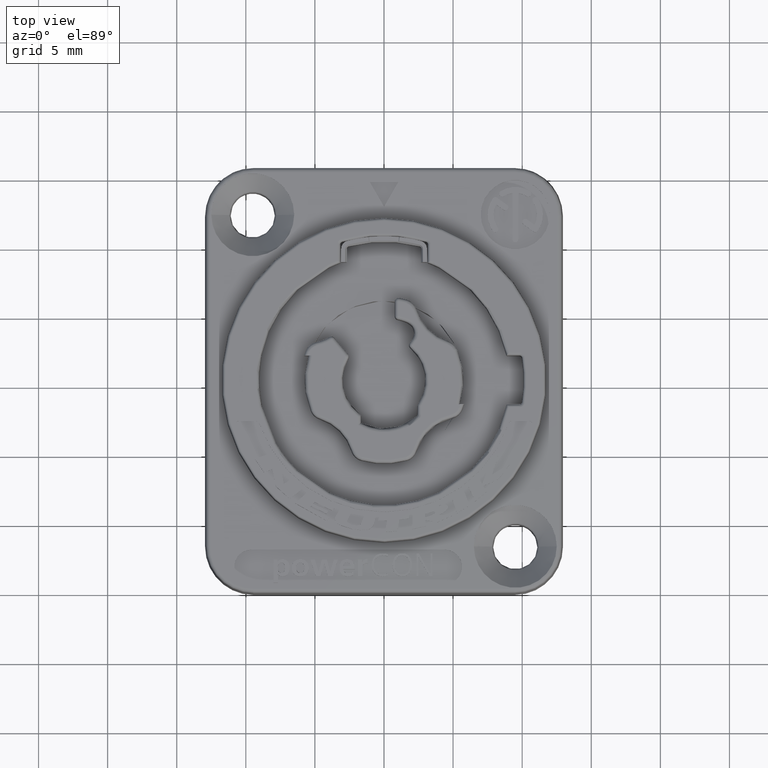
[diagram: clean part render]
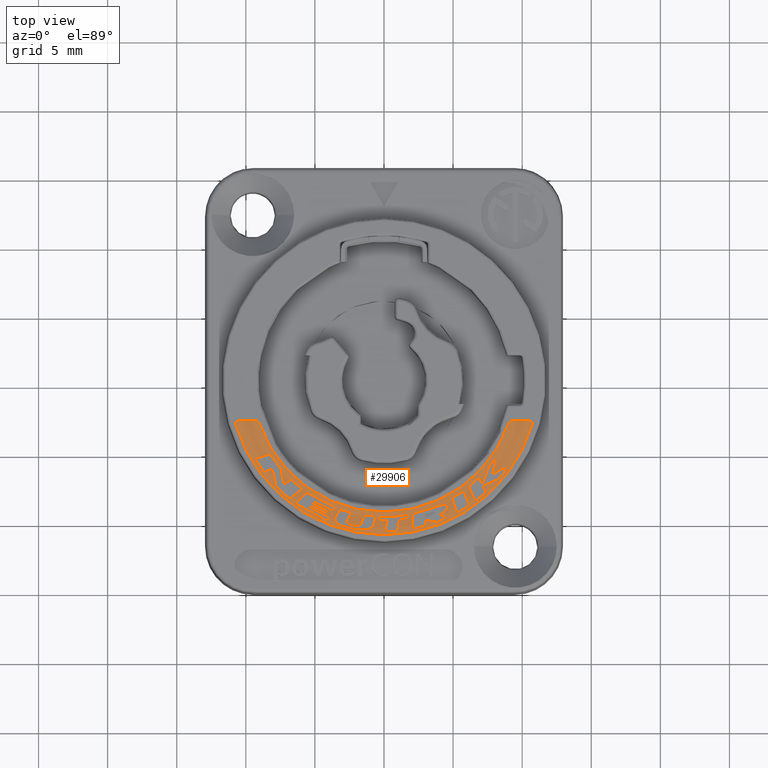
[diagram: same view with one face highlighted and labeled with its STEP entity id]
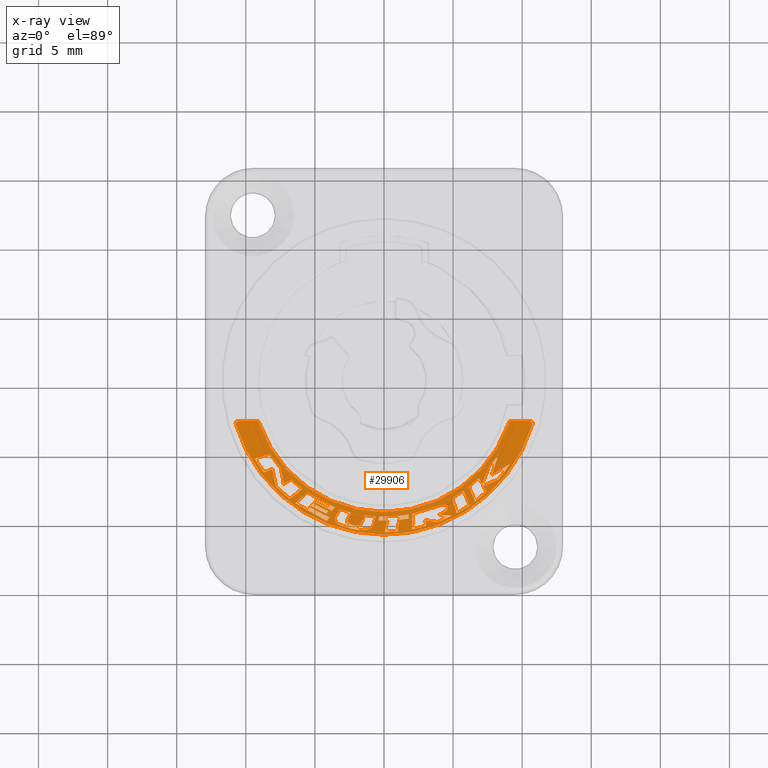
[diagram: x-ray of the same camera — body ghosted, the highlighted face saturated]
A machine part, top view. The second image highlights one B-rep face of the part: STEP entity #29906.
The next image is the same camera in x-ray: the body ghosted, the highlighted face saturated — about 0% of this face is hidden behind the body in this view.
In plain terms, the highlighted planar face has unit normal (0, 0, 1).
Its self-contained STEP definition (entity closure, byte-faithful):
#7360=CARTESIAN_POINT('',(-6.827612964195E0,-8.614918597293E0,6.75E0));
#7361=CARTESIAN_POINT('',(-6.521500727401E0,-8.376760294763E0,6.75E0));
#7362=CARTESIAN_POINT('',(-6.215388490606E0,-8.138601992233E0,6.75E0));
#7363=CARTESIAN_POINT('',(-5.909276253812E0,-7.900443689702E0,6.75E0));
#7365=CARTESIAN_POINT('',(-5.909276253812E0,-7.900443689702E0,6.75E0));
#7366=CARTESIAN_POINT('',(-5.939031652195E0,-7.877300602071E0,6.75E0));
#7367=CARTESIAN_POINT('',(-6.219471705696E0,-7.654725634258E0,6.75E0));
#7368=CARTESIAN_POINT('',(-6.499984178670E0,-7.429851105818E0,6.75E0));
#7369=CARTESIAN_POINT('',(-6.726480894314E0,-7.203223542850E0,6.75E0));
#7371=CARTESIAN_POINT('',(-6.726480894314E0,-7.203223542850E0,6.75E0));
#7372=CARTESIAN_POINT('',(-6.903768235353E0,-7.315166465909E0,6.75E0));
#7373=CARTESIAN_POINT('',(-7.081055576391E0,-7.427109388967E0,6.75E0));
#7374=CARTESIAN_POINT('',(-7.258342917429E0,-7.539052312026E0,6.75E0));
#7376=CARTESIAN_POINT('',(-7.258342917429E0,-7.539052312026E0,6.75E0));
#7377=CARTESIAN_POINT('',(-7.263817196604E0,-7.522924767570E0,6.75E0));
#7378=CARTESIAN_POINT('',(-7.356621912965E0,-7.159824832674E0,6.75E0));
#7379=CARTESIAN_POINT('',(-7.403844137817E0,-6.787128147671E0,6.75E0));
#7380=CARTESIAN_POINT('',(-7.450062481183E0,-6.432830429164E0,6.75E0));
#7382=CARTESIAN_POINT('',(-7.450062481183E0,-6.432830429164E0,6.75E0));
#7383=CARTESIAN_POINT('',(-7.474393555465E0,-6.403669866176E0,6.75E0));
#7384=CARTESIAN_POINT('',(-7.756486253510E0,-6.054553303598E0,6.75E0));
#7385=CARTESIAN_POINT('',(-8.023122424390E0,-5.691977414326E0,6.75E0));
#7386=CARTESIAN_POINT('',(-8.244899839247E0,-5.346100035285E0,6.75E0));
#7388=CARTESIAN_POINT('',(-8.244899839247E0,-5.346100035285E0,6.75E0));
#7389=CARTESIAN_POINT('',(-8.277296132221E0,-5.357104952325E0,6.75E0));
#7390=CARTESIAN_POINT('',(-8.643881040769E0,-5.480153500023E0,6.75E0));
#7391=CARTESIAN_POINT('',(-9.011713394565E0,-5.599656361009E0,6.75E0));
#7392=CARTESIAN_POINT('',(-9.348884993865E0,-5.702378891261E0,6.75E0));
#7394=CARTESIAN_POINT('',(-9.348884993865E0,-5.702378891261E0,6.75E0));
#7395=CARTESIAN_POINT('',(-9.330711784623E0,-5.735439047599E0,6.75E0));
#7396=CARTESIAN_POINT('',(-9.130008952933E0,-6.083727484677E0,6.75E0));
#7397=CARTESIAN_POINT('',(-8.911416819816E0,-6.425058983496E0,6.75E0));
#7398=CARTESIAN_POINT('',(-8.675629792482E0,-6.702835481452E0,6.75E0));
#7400=CARTESIAN_POINT('',(-8.675629792482E0,-6.702835481452E0,6.75E0));
#7401=CARTESIAN_POINT('',(-8.477040277693E0,-6.620928623381E0,6.75E0));
#7402=CARTESIAN_POINT('',(-8.278450762904E0,-6.539021765311E0,6.75E0));
#7403=CARTESIAN_POINT('',(-8.079861248116E0,-6.457114907240E0,6.75E0));
#7405=CARTESIAN_POINT('',(-8.079861248116E0,-6.457114907240E0,6.75E0));
#7406=CARTESIAN_POINT('',(-8.076128563839E0,-6.476175422694E0,6.75E0));
#7407=CARTESIAN_POINT('',(-7.993321788592E0,-6.890519200846E0,6.75E0));
#7408=CARTESIAN_POINT('',(-7.907907122528E0,-7.304336000764E0,6.75E0));
#7409=CARTESIAN_POINT('',(-7.826471891354E0,-7.699138147761E0,6.75E0));
#7411=CARTESIAN_POINT('',(-7.826471891354E0,-7.699138147761E0,6.75E0));
#7412=CARTESIAN_POINT('',(-7.802670621148E0,-7.726660396271E0,6.75E0));
#7413=CARTESIAN_POINT('',(-7.496970690988E0,-8.059472823427E0,6.75E0));
#7414=CARTESIAN_POINT('',(-7.159976687585E0,-8.365578196181E0,6.75E0));
#7415=CARTESIAN_POINT('',(-6.827612964195E0,-8.614918597293E0,6.75E0));
#7417=CARTESIAN_POINT('',(-5.564500571661E0,-8.150957253008E0,6.75E0));
#7418=CARTESIAN_POINT('',(-5.578987993489E0,-8.165834518187E0,6.75E0));
#7419=CARTESIAN_POINT('',(-5.854195351426E0,-8.434959141495E0,6.75E0));
#7420=CARTESIAN_POINT('',(-6.143303899054E0,-8.689491001468E0,6.75E0));
#7421=CARTESIAN_POINT('',(-6.417812396670E0,-8.928699616637E0,6.75E0));
#7423=CARTESIAN_POINT('',(-6.417812396670E0,-8.928699616637E0,6.75E0));
#7424=CARTESIAN_POINT('',(-6.357296673357E0,-8.968478151791E0,6.75E0));
#7425=CARTESIAN_POINT('',(-5.621461294073E0,-9.433749740086E0,6.75E0));
#7426=CARTESIAN_POINT('',(-4.860102768627E0,-9.861514542570E0,6.75E0));
#7427=CARTESIAN_POINT('',(-4.140024212968E0,-1.020587144385E1,6.75E0));
#7429=CARTESIAN_POINT('',(-4.140024212968E0,-1.020587144385E1,6.75E0));
#7430=CARTESIAN_POINT('',(-4.073934218907E0,-1.012247343361E1,6.75E0));
#7431=CARTESIAN_POINT('',(-4.007844224846E0,-1.003907542338E1,6.75E0));
#7432=CARTESIAN_POINT('',(-3.941754230785E0,-9.955677413147E0,6.75E0));
#7434=CARTESIAN_POINT('',(-3.941754230785E0,-9.955677413147E0,6.75E0));
#7435=CARTESIAN_POINT('',(-3.975174572146E0,-9.940436108645E0,6.75E0));
#7436=CARTESIAN_POINT('',(-4.459329736641E0,-9.711857007856E0,6.75E0));
#7437=CARTESIAN_POINT('',(-4.934869447209E0,-9.465111673221E0,6.75E0));
#7438=CARTESIAN_POINT('',(-5.373420073119E0,-9.227782136094E0,6.75E0));
#7440=CARTESIAN_POINT('',(-5.373420073119E0,-9.227782136094E0,6.75E0));
#7441=CARTESIAN_POINT('',(-5.341040769019E0,-9.193059592881E0,6.75E0));
#7442=CARTESIAN_POINT('',(-5.308661464918E0,-9.158337049667E0,6.75E0));
#7443=CARTESIAN_POINT('',(-5.276282160817E0,-9.123614506454E0,6.75E0));
#7445=CARTESIAN_POINT('',(-5.276282160817E0,-9.123614506454E0,6.75E0));
#7446=CARTESIAN_POINT('',(-5.248092992101E0,-9.140580037791E0,6.75E0));
#7447=CARTESIAN_POINT('',(-4.893984704908E0,-9.345569209364E0,6.75E0));
#7448=CARTESIAN_POINT('',(-4.529039222982E0,-9.532727240282E0,6.75E0));
#7449=CARTESIAN_POINT('',(-4.185557609359E0,-9.686311426072E0,6.75E0));
#7451=CARTESIAN_POINT('',(-4.185557609359E0,-9.686311426072E0,6.75E0));
#7452=CARTESIAN_POINT('',(-4.135604011915E0,-9.624961165671E0,6.75E0));
#7453=CARTESIAN_POINT('',(-4.085650414470E0,-9.563610905270E0,6.75E0));
#7454=CARTESIAN_POINT('',(-4.035696817025E0,-9.502260644868E0,6.75E0));
#7456=CARTESIAN_POINT('',(-4.035696817025E0,-9.502260644868E0,6.75E0));
#7457=CARTESIAN_POINT('',(-4.077552410755E0,-9.482656842619E0,6.75E0));
#7458=CARTESIAN_POINT('',(-4.444827954773E0,-9.308490653831E0,6.75E0));
#7459=CARTESIAN_POINT('',(-4.814067384382E0,-9.136984971746E0,6.75E0));
#7460=CARTESIAN_POINT('',(-5.128977629333E0,-8.961931007688E0,6.75E0));
#7462=CARTESIAN_POINT('',(-5.128977629333E0,-8.961931007688E0,6.75E0));
#7463=CARTESIAN_POINT('',(-5.091272781795E0,-8.924226160150E0,6.75E0));
#7464=CARTESIAN_POINT('',(-5.053567934256E0,-8.886521312611E0,6.75E0));
#7465=CARTESIAN_POINT('',(-5.015863086718E0,-8.848816465073E0,6.75E0));
#7467=CARTESIAN_POINT('',(-5.015863086718E0,-8.848816465073E0,6.75E0));
#7468=CARTESIAN_POINT('',(-4.971528244643E0,-8.872649188900E0,6.75E0));
#7469=CARTESIAN_POINT('',(-4.549929728037E0,-9.094506433001E0,6.75E0));
#7470=CARTESIAN_POINT('',(-4.126076461654E0,-9.315597764441E0,6.75E0));
#7471=CARTESIAN_POINT('',(-3.730383411746E0,-9.473822242912E0,6.75E0));
#7473=CARTESIAN_POINT('',(-3.730383411746E0,-9.473822242912E0,6.75E0));
#7474=CARTESIAN_POINT('',(-3.666530145929E0,-9.389359123991E0,6.75E0));
#7475=CARTESIAN_POINT('',(-3.602676880112E0,-9.304896005070E0,6.75E0));
#7476=CARTESIAN_POINT('',(-3.538823614295E0,-9.220432886150E0,6.75E0));
#7478=CARTESIAN_POINT('',(-3.538823614295E0,-9.220432886150E0,6.75E0));
#7479=CARTESIAN_POINT('',(-3.605286150574E0,-9.191561065752E0,6.75E0));
#7480=CARTESIAN_POINT('',(-4.300353469692E0,-8.875494935186E0,6.75E0));
#7481=CARTESIAN_POINT('',(-4.987527681033E0,-8.531658483768E0,6.75E0));
#7482=CARTESIAN_POINT('',(-5.564500571661E0,-8.150957253008E0,6.75E0));
#7484=CARTESIAN_POINT('',(-5.793126151438E-1,-9.868764544245E0,6.75E0));
#7485=CARTESIAN_POINT('',(-5.966861756297E-1,-9.868184425357E0,6.75E0));
#7486=CARTESIAN_POINT('',(-8.762863969342E-1,-9.852271007284E0,6.75E0));
#7487=CARTESIAN_POINT('',(-1.154759617745E0,-9.819421258649E0,6.75E0));
#7488=CARTESIAN_POINT('',(-1.415050146809E0,-9.784407936193E0,6.75E0));
#7490=CARTESIAN_POINT('',(-1.415050146809E0,-9.784407936193E0,6.75E0));
#7491=CARTESIAN_POINT('',(-1.493761678817E0,-9.984754880316E0,6.75E0));
#7492=CARTESIAN_POINT('',(-1.572473210825E0,-1.018510182444E1,6.75E0));
#7493=CARTESIAN_POINT('',(-1.651184742833E0,-1.038544876856E1,6.75E0));
#7495=CARTESIAN_POINT('',(-1.651184742833E0,-1.038544876856E1,6.75E0));
#7496=CARTESIAN_POINT('',(-1.655800714064E0,-1.039919333962E1,6.75E0));
#7497=CARTESIAN_POINT('',(-1.780070743017E0,-1.058646300487E1,6.75E0));
#7498=CARTESIAN_POINT('',(-2.083784901222E0,-1.054857702441E1,6.75E0));
#7499=CARTESIAN_POINT('',(-2.281143276068E0,-1.049632658293E1,6.75E0));
#7501=CARTESIAN_POINT('',(-2.281143276068E0,-1.049632658293E1,6.75E0));
#7502=CARTESIAN_POINT('',(-2.307712813566E0,-1.049148385935E1,6.75E0));
#7503=CARTESIAN_POINT('',(-2.463183229371E0,-1.045947036772E1,6.75E0));
#7504=CARTESIAN_POINT('',(-2.735432873267E0,-1.029496916698E1,6.75E0));
#7505=CARTESIAN_POINT('',(-2.661387077514E0,-1.017264005280E1,6.75E0));
#7507=CARTESIAN_POINT('',(-2.661387077514E0,-1.017264005280E1,6.75E0));
#7508=CARTESIAN_POINT('',(-2.564462186949E0,-9.981240021648E0,6.75E0));
#7509=CARTESIAN_POINT('',(-2.467537296385E0,-9.789839990499E0,6.75E0));
#7510=CARTESIAN_POINT('',(-2.370612405820E0,-9.598439959352E0,6.75E0));
#7512=CARTESIAN_POINT('',(-2.370612405820E0,-9.598439959352E0,6.75E0));
#7513=CARTESIAN_POINT('',(-2.396448001741E0,-9.592335648988E0,6.75E0));
#7514=CARTESIAN_POINT('',(-2.670035717131E0,-9.524270674772E0,6.75E0));
#7515=CARTESIAN_POINT('',(-2.942527321059E0,-9.448782694905E0,6.75E0));
#7516=CARTESIAN_POINT('',(-3.182384992016E0,-9.361027232903E0,6.75E0));
#7518=CARTESIAN_POINT('',(-3.182384992016E0,-9.361027232903E0,6.75E0));
#7519=CARTESIAN_POINT('',(-3.291185844446E0,-9.536450633738E0,6.75E0));
#7520=CARTESIAN_POINT('',(-3.399986696877E0,-9.711874034573E0,6.75E0));
#7521=CARTESIAN_POINT('',(-3.508787549307E0,-9.887297435408E0,6.75E0));
#7523=CARTESIAN_POINT('',(-3.508787549307E0,-9.887297435408E0,6.75E0));
#7524=CARTESIAN_POINT('',(-3.523769172547E0,-9.904534356770E0,6.75E0));
#7525=CARTESIAN_POINT('',(-3.658434489152E0,-1.011352392853E1,6.75E0));
#7526=CARTESIAN_POINT('',(-3.400380195489E0,-1.041166750579E1,6.75E0));
#7527=CARTESIAN_POINT('',(-3.201556948391E0,-1.050111957203E1,6.75E0));
#7529=CARTESIAN_POINT('',(-3.201556948391E0,-1.050111957203E1,6.75E0));
#7530=CARTESIAN_POINT('',(-3.139690216500E0,-1.052986269106E1,6.75E0));
#7531=CARTESIAN_POINT('',(-2.495260588824E0,-1.078576217416E1,6.75E0));
#7532=CARTESIAN_POINT('',(-1.762425845639E0,-1.095476436590E1,6.75E0));
#7533=CARTESIAN_POINT('',(-1.147761121675E0,-1.083023815647E1,6.75E0));
#7535=CARTESIAN_POINT('',(-1.147761121675E0,-1.083023815647E1,6.75E0));
#7536=CARTESIAN_POINT('',(-1.131218047124E0,-1.082656191768E1,6.75E0));
#7537=CARTESIAN_POINT('',(-9.620723166661E-1,-1.077098530356E1,6.75E0));
#7538=CARTESIAN_POINT('',(-8.041949452646E-1,-1.062654256629E1,6.75E0));
#7539=CARTESIAN_POINT('',(-7.571325105257E-1,-1.047204210486E1,6.75E0));
#7541=CARTESIAN_POINT('',(-7.571325105257E-1,-1.047204210486E1,6.75E0));
#7542=CARTESIAN_POINT('',(-6.978592120651E-1,-1.027094958465E1,6.75E0));
#7543=CARTESIAN_POINT('',(-6.385859136045E-1,-1.006985706445E1,6.75E0));
#7544=CARTESIAN_POINT('',(-5.793126151438E-1,-9.868764544245E0,6.75E0));
#7546=CARTESIAN_POINT('',(-3.514858668826E-1,-9.879628652858E0,6.75E0));
#7547=CARTESIAN_POINT('',(-3.775810297269E-1,-9.977831673847E0,6.75E0));
#7548=CARTESIAN_POINT('',(-4.036761925712E-1,-1.007603469484E1,6.75E0));
#7549=CARTESIAN_POINT('',(-4.297713554155E-1,-1.017423771583E1,6.75E0));
#7551=CARTESIAN_POINT('',(-4.297713554155E-1,-1.017423771583E1,6.75E0));
#7552=CARTESIAN_POINT('',(-4.107687208769E-1,-1.017505994521E1,6.75E0));
#7553=CARTESIAN_POINT('',(-1.913697432697E-1,-1.018280074629E1,6.75E0));
#7554=CARTESIAN_POINT('',(2.832319772311E-2,-1.018566003725E1,6.75E0));
#7555=CARTESIAN_POINT('',(2.287853460800E-1,-1.018094790056E1,6.75E0));
#7557=CARTESIAN_POINT('',(2.287853460800E-1,-1.018094790056E1,6.75E0));
#7558=CARTESIAN_POINT('',(1.706304117412E-1,-1.045457432238E1,6.75E0));
#7559=CARTESIAN_POINT('',(1.124754774025E-1,-1.072820074421E1,6.75E0));
#7560=CARTESIAN_POINT('',(5.432054306371E-2,-1.100182716603E1,6.75E0));
#7562=CARTESIAN_POINT('',(5.432054306371E-2,-1.100182716603E1,6.75E0));
#7563=CARTESIAN_POINT('',(8.814324867355E-2,-1.100210683698E1,6.75E0));
#7564=CARTESIAN_POINT('',(3.983124611473E-1,-1.100052892693E1,6.75E0));
#7565=CARTESIAN_POINT('',(7.114564429262E-1,-1.100016057875E1,6.75E0));
#7566=CARTESIAN_POINT('',(9.838408946651E-1,-1.095261914467E1,6.75E0));
#7568=CARTESIAN_POINT('',(9.838408946651E-1,-1.095261914467E1,6.75E0));
#7569=CARTESIAN_POINT('',(1.023143405235E0,-1.067824714676E1,6.75E0));
#7570=CARTESIAN_POINT('',(1.062445915804E0,-1.040387514886E1,6.75E0));
#7571=CARTESIAN_POINT('',(1.101748426374E0,-1.012950315095E1,6.75E0));
#7573=CARTESIAN_POINT('',(1.101748426374E0,-1.012950315095E1,6.75E0));
#7574=CARTESIAN_POINT('',(1.119103642579E0,-1.012797347466E1,6.75E0));
#7575=CARTESIAN_POINT('',(1.348876711247E0,-1.010379684741E1,6.75E0));
#7576=CARTESIAN_POINT('',(1.577515572608E0,-1.006797010979E1,6.75E0));
#7577=CARTESIAN_POINT('',(1.787145866795E0,-1.002693318434E1,6.75E0));
#7579=CARTESIAN_POINT('',(1.787145866795E0,-1.002693318434E1,6.75E0));
#7580=CARTESIAN_POINT('',(1.791406301545E0,-9.925321815553E0,6.75E0));
#7581=CARTESIAN_POINT('',(1.795666736295E0,-9.823710446763E0,6.75E0));
#7582=CARTESIAN_POINT('',(1.799927171045E0,-9.722099077973E0,6.75E0));
#7584=CARTESIAN_POINT('',(1.799927171045E0,-9.722099077973E0,6.75E0));
#7585=CARTESIAN_POINT('',(1.754319445481E0,-9.734445056022E0,6.75E0));
#7586=CARTESIAN_POINT('',(1.048784421084E0,-9.879125971911E0,6.75E0));
#7587=CARTESIAN_POINT('',(3.205305220703E-1,-9.900695954465E0,6.75E0));
#7588=CARTESIAN_POINT('',(-3.514858668826E-1,-9.879628652858E0,6.75E0));
#7590=CARTESIAN_POINT('',(4.962660907776E0,-9.815083066394E0,6.75E0));
#7591=CARTESIAN_POINT('',(4.636950671132E0,-9.804112446912E0,6.75E0));
#7592=CARTESIAN_POINT('',(4.311240434487E0,-9.793141827431E0,6.75E0));
#7593=CARTESIAN_POINT('',(3.985530197843E0,-9.782171207949E0,6.75E0));
#7595=CARTESIAN_POINT('',(3.985530197843E0,-9.782171207949E0,6.75E0));
#7596=CARTESIAN_POINT('',(4.010573655051E0,-9.770369717373E0,6.75E0));
#7597=CARTESIAN_POINT('',(4.228704492705E0,-9.656298086281E0,6.75E0));
#7598=CARTESIAN_POINT('',(4.468165744520E0,-9.527789648168E0,6.75E0));
#7599=CARTESIAN_POINT('',(4.578582715055E0,-9.337701352646E0,6.75E0));
#7601=CARTESIAN_POINT('',(4.578582715055E0,-9.337701352646E0,6.75E0));
#7602=CARTESIAN_POINT('',(4.611416845705E0,-9.283913862306E0,6.75E0));
#7603=CARTESIAN_POINT('',(4.685325372789E0,-9.015031704776E0,6.75E0));
#7604=CARTESIAN_POINT('',(4.312692480982E0,-9.024672426994E0,6.75E0));
#7605=CARTESIAN_POINT('',(4.158077805221E0,-9.050441539621E0,6.75E0));
#7607=CARTESIAN_POINT('',(4.158077805221E0,-9.050441539621E0,6.75E0));
#7608=CARTESIAN_POINT('',(4.141587919156E0,-9.053694390578E0,6.75E0));
#7609=CARTESIAN_POINT('',(3.927217282610E0,-9.102330332908E0,6.75E0));
#7610=CARTESIAN_POINT('',(3.716724116829E0,-9.169434393418E0,6.75E0));
#7611=CARTESIAN_POINT('',(3.527959505683E0,-9.244078299013E0,6.75E0));
#7613=CARTESIAN_POINT('',(3.527959505683E0,-9.244078299013E0,6.75E0));
#7614=CARTESIAN_POINT('',(3.479343218168E0,-9.261153460966E0,6.75E0));
#7615=CARTESIAN_POINT('',(2.991026414806E0,-9.426375795090E0,6.75E0));
#7616=CARTESIAN_POINT('',(2.497956320580E0,-9.583875039395E0,6.75E0));
#7617=CARTESIAN_POINT('',(2.043730549619E0,-9.678962176128E0,6.75E0));
#7619=CARTESIAN_POINT('',(2.043730549619E0,-9.678962176128E0,6.75E0));
#7620=CARTESIAN_POINT('',(2.042026375719E0,-1.005611716238E1,6.75E0));
#7621=CARTESIAN_POINT('',(2.040322201819E0,-1.043327214863E1,6.75E0));
#7622=CARTESIAN_POINT('',(2.038618027919E0,-1.081042713488E1,6.75E0));
#7624=CARTESIAN_POINT('',(2.038618027919E0,-1.081042713488E1,6.75E0));
#7625=CARTESIAN_POINT('',(2.068146012549E0,-1.080557871272E1,6.75E0));
#7626=CARTESIAN_POINT('',(2.404728418846E0,-1.074482830194E1,6.75E0));
#7627=CARTESIAN_POINT('',(2.739444199918E0,-1.066915150742E1,6.75E0));
#7628=CARTESIAN_POINT('',(3.037796487685E0,-1.057748786492E1,6.75E0));
#7630=CARTESIAN_POINT('',(3.037796487685E0,-1.057748786492E1,6.75E0));
#7631=CARTESIAN_POINT('',(3.026186802991E0,-1.043923675728E1,6.75E0));
#7632=CARTESIAN_POINT('',(3.014577118297E0,-1.030098564964E1,6.75E0));
#7633=CARTESIAN_POINT('',(3.002967433603E0,-1.016273454200E1,6.75E0));
#7635=CARTESIAN_POINT('',(3.002967433603E0,-1.016273454200E1,6.75E0));
#7636=CARTESIAN_POINT('',(3.040673019040E0,-1.016939246520E1,6.75E0));
#7637=CARTESIAN_POINT('',(3.325938171525E0,-1.021850583611E1,6.75E0));
#7638=CARTESIAN_POINT('',(3.610143366527E0,-1.027715336652E1,6.75E0));
#7639=CARTESIAN_POINT('',(3.859953883584E0,-1.030364842136E1,6.75E0));
#7641=CARTESIAN_POINT('',(3.859953883584E0,-1.030364842136E1,6.75E0));
#7642=CARTESIAN_POINT('',(3.902782575777E0,-1.028660364224E1,6.75E0));
#7643=CARTESIAN_POINT('',(4.274910923443E0,-1.013470414736E1,6.75E0));
#7644=CARTESIAN_POINT('',(4.651627505586E0,-9.988196458439E0,6.75E0));
#7645=CARTESIAN_POINT('',(4.962660907776E0,-9.815083066394E0,6.75E0));
#7647=CARTESIAN_POINT('',(4.912813821200E0,-8.564432445504E0,6.75E0));
#7648=CARTESIAN_POINT('',(5.037538048509E0,-8.925823823181E0,6.75E0));
#7649=CARTESIAN_POINT('',(5.162262275818E0,-9.287215200858E0,6.75E0));
#7650=CARTESIAN_POINT('',(5.286986503127E0,-9.648606578534E0,6.75E0));
#7652=CARTESIAN_POINT('',(5.286986503127E0,-9.648606578534E0,6.75E0));
#7653=CARTESIAN_POINT('',(5.323448566873E0,-9.627187700823E0,6.75E0));
#7654=CARTESIAN_POINT('',(5.627647593157E0,-9.446194777801E0,6.75E0));
#7655=CARTESIAN_POINT('',(5.936150561030E0,-9.270581280536E0,6.75E0));
#7656=CARTESIAN_POINT('',(6.190305181015E0,-9.090063582797E0,6.75E0));
#7658=CARTESIAN_POINT('',(6.190305181015E0,-9.090063582797E0,6.75E0));
#7659=CARTESIAN_POINT('',(6.048965258181E0,-8.729098248595E0,6.75E0));
#7660=CARTESIAN_POINT('',(5.907625335347E0,-8.368132914394E0,6.75E0));
#7661=CARTESIAN_POINT('',(5.766285412512E0,-8.007167580192E0,6.75E0));
#7663=CARTESIAN_POINT('',(5.766285412512E0,-8.007167580192E0,6.75E0));
#7664=CARTESIAN_POINT('',(5.737476961960E0,-8.026897218002E0,6.75E0));
#7665=CARTESIAN_POINT('',(5.456239798443E0,-8.217530506602E0,6.75E0));
#7666=CARTESIAN_POINT('',(5.173891340476E0,-8.407032825710E0,6.75E0));
#7667=CARTESIAN_POINT('',(4.912813821200E0,-8.564432445504E0,6.75E0));
#7669=CARTESIAN_POINT('',(6.858767393305E0,-7.088511337204E0,6.75E0));
#7670=CARTESIAN_POINT('',(6.835659797220E0,-7.111050130924E0,6.75E0));
#7671=CARTESIAN_POINT('',(6.600681770921E0,-7.336022142278E0,6.75E0));
#7672=CARTESIAN_POINT('',(6.361822391263E0,-7.558084335998E0,6.75E0));
#7673=CARTESIAN_POINT('',(6.131830714070E0,-7.739718788755E0,6.75E0));
#7675=CARTESIAN_POINT('',(6.131830714070E0,-7.739718788755E0,6.75E0));
#7676=CARTESIAN_POINT('',(6.287336582449E0,-8.091737209982E0,6.75E0));
#7677=CARTESIAN_POINT('',(6.442842450827E0,-8.443755631208E0,6.75E0));
#7678=CARTESIAN_POINT('',(6.598348319206E0,-8.795774052434E0,6.75E0));
#7680=CARTESIAN_POINT('',(6.598348319206E0,-8.795774052434E0,6.75E0));
#7681=CARTESIAN_POINT('',(6.633654054081E0,-8.767082815450E0,6.75E0));
#7682=CARTESIAN_POINT('',(6.906521185297E0,-8.542438850866E0,6.75E0));
#7683=CARTESIAN_POINT('',(7.189903151833E0,-8.328197871032E0,6.75E0));
#7684=CARTESIAN_POINT('',(7.407724410854E0,-8.110376612013E0,6.75E0));
#7686=CARTESIAN_POINT('',(7.407724410854E0,-8.110376612013E0,6.75E0));
#7687=CARTESIAN_POINT('',(7.329332411453E0,-7.967758558754E0,6.75E0));
#7688=CARTESIAN_POINT('',(7.250940412051E0,-7.825140505495E0,6.75E0));
#7689=CARTESIAN_POINT('',(7.172548412649E0,-7.682522452235E0,6.75E0));
#7691=CARTESIAN_POINT('',(7.172548412649E0,-7.682522452235E0,6.75E0));
#7692=CARTESIAN_POINT('',(7.537774181601E0,-7.524034279532E0,6.75E0));
#7693=CARTESIAN_POINT('',(7.902999950552E0,-7.365546106828E0,6.75E0));
#7694=CARTESIAN_POINT('',(8.268225719504E0,-7.207057934125E0,6.75E0));
#7696=CARTESIAN_POINT('',(8.268225719504E0,-7.207057934125E0,6.75E0));
#7697=CARTESIAN_POINT('',(8.306783071949E0,-7.159374380353E0,6.75E0));
#7698=CARTESIAN_POINT('',(8.590577992633E0,-6.798674469249E0,6.75E0));
#7699=CARTESIAN_POINT('',(8.918354358508E0,-6.461189727973E0,6.75E0));
#7700=CARTESIAN_POINT('',(9.096454234922E0,-6.104989975145E0,6.75E0));
#7702=CARTESIAN_POINT('',(9.096454234922E0,-6.104989975145E0,6.75E0));
#7703=CARTESIAN_POINT('',(8.671688890338E0,-6.355503538450E0,6.75E0));
#7704=CARTESIAN_POINT('',(8.246923545754E0,-6.606017101756E0,6.75E0));
#7705=CARTESIAN_POINT('',(7.822158201170E0,-6.856530665061E0,6.75E0));
#7707=CARTESIAN_POINT('',(7.822158201170E0,-6.856530665061E0,6.75E0));
#7708=CARTESIAN_POINT('',(7.981711482560E0,-6.357314223219E0,6.75E0));
#7709=CARTESIAN_POINT('',(8.141264763951E0,-5.858097781377E0,6.75E0));
#7710=CARTESIAN_POINT('',(8.300818045342E0,-5.358881339535E0,6.75E0));
#7712=CARTESIAN_POINT('',(8.300818045342E0,-5.358881339535E0,6.75E0));
#7713=CARTESIAN_POINT('',(8.062340210206E0,-5.667443326310E0,6.75E0));
#7714=CARTESIAN_POINT('',(7.823862375070E0,-5.976005313086E0,6.75E0));
#7715=CARTESIAN_POINT('',(7.585384539933E0,-6.284567299861E0,6.75E0));
#7717=CARTESIAN_POINT('',(7.585384539933E0,-6.284567299861E0,6.75E0));
#7718=CARTESIAN_POINT('',(7.422955465086E0,-6.703581057533E0,6.75E0));
#7719=CARTESIAN_POINT('',(7.260526390238E0,-7.122594815204E0,6.75E0));
#7720=CARTESIAN_POINT('',(7.098097315391E0,-7.541608572876E0,6.75E0));
#7722=CARTESIAN_POINT('',(7.098097315391E0,-7.541608572876E0,6.75E0));
#7723=CARTESIAN_POINT('',(7.018320674696E0,-7.390576160985E0,6.75E0));
#7724=CARTESIAN_POINT('',(6.938544034E0,-7.239543749094E0,6.75E0));
#7725=CARTESIAN_POINT('',(6.858767393305E0,-7.088511337204E0,6.75E0));
#7749=CARTESIAN_POINT('',(1.053722777606E1,-3.176103239576E0,6.75E0));
#7750=DIRECTION('',(0.E0,0.E0,1.E0));
#7751=DIRECTION('',(9.574519784169E-1,-2.885926350853E-1,0.E0));
#7752=AXIS2_PLACEMENT_3D('',#7749,#7750,#7751);
#7754=CARTESIAN_POINT('',(0.E0,0.E0,6.75E0));
#7755=DIRECTION('',(0.E0,0.E0,1.E0));
#7756=DIRECTION('',(-9.574519784169E-1,-2.885926350854E-1,0.E0));
#7757=AXIS2_PLACEMENT_3D('',#7754,#7755,#7756);
#7759=CARTESIAN_POINT('',(-1.053722777606E1,-3.176103239576E0,6.75E0));
#7760=DIRECTION('',(0.E0,0.E0,1.E0));
#7761=DIRECTION('',(-2.664535259100E-14,1.E0,0.E0));
#7762=AXIS2_PLACEMENT_3D('',#7759,#7760,#7761);
#7764=DIRECTION('',(-1.E0,0.E0,0.E0));
#7765=VECTOR('',#7764,1.303199456344E0);
#7766=CARTESIAN_POINT('',(-9.234028319718E0,-2.976103239576E0,6.75E0));
#7767=LINE('',#7766,#7765);
#7768=CARTESIAN_POINT('',(-9.234028319718E0,-3.176103239576E0,6.75E0));
#7769=DIRECTION('',(0.E0,0.E0,1.E0));
#7770=DIRECTION('',(9.456265778949E-1,3.252543238434E-1,0.E0));
#7771=AXIS2_PLACEMENT_3D('',#7768,#7769,#7770);
#7773=CARTESIAN_POINT('',(0.E0,0.E0,6.75E0));
#7774=DIRECTION('',(0.E0,0.E0,-1.E0));
#7775=DIRECTION('',(9.456265778949E-1,-3.252543238435E-1,0.E0));
#7776=AXIS2_PLACEMENT_3D('',#7773,#7774,#7775);
#7778=CARTESIAN_POINT('',(9.234028319718E0,-3.176103239576E0,6.75E0));
#7779=DIRECTION('',(0.E0,0.E0,1.E0));
#7780=DIRECTION('',(0.E0,1.E0,0.E0));
#7781=AXIS2_PLACEMENT_3D('',#7778,#7779,#7780);
#7783=DIRECTION('',(-1.E0,0.E0,0.E0));
#7784=VECTOR('',#7783,1.303199456344E0);
#7785=CARTESIAN_POINT('',(1.053722777606E1,-2.976103239576E0,6.75E0));
#7786=LINE('',#7785,#7784);
#18909=VERTEX_POINT('',#7360);
#18910=VERTEX_POINT('',#7363);
#18911=VERTEX_POINT('',#7369);
#18912=VERTEX_POINT('',#7374);
#18913=VERTEX_POINT('',#7380);
#18914=VERTEX_POINT('',#7386);
#18915=VERTEX_POINT('',#7392);
#18916=VERTEX_POINT('',#7398);
#18917=VERTEX_POINT('',#7403);
#18918=VERTEX_POINT('',#7409);
#18919=VERTEX_POINT('',#7417);
#18920=VERTEX_POINT('',#7421);
#18921=VERTEX_POINT('',#7427);
#18922=VERTEX_POINT('',#7432);
#18923=VERTEX_POINT('',#7438);
#18924=VERTEX_POINT('',#7443);
#18925=VERTEX_POINT('',#7449);
#18926=VERTEX_POINT('',#7454);
#18927=VERTEX_POINT('',#7460);
#18928=VERTEX_POINT('',#7465);
#18929=VERTEX_POINT('',#7471);
#18930=VERTEX_POINT('',#7476);
#18931=VERTEX_POINT('',#7484);
#18932=VERTEX_POINT('',#7488);
#18933=VERTEX_POINT('',#7493);
#18934=VERTEX_POINT('',#7499);
#18935=VERTEX_POINT('',#7505);
#18936=VERTEX_POINT('',#7510);
#18937=VERTEX_POINT('',#7516);
#18938=VERTEX_POINT('',#7521);
#18939=VERTEX_POINT('',#7527);
#18940=VERTEX_POINT('',#7533);
#18941=VERTEX_POINT('',#7539);
#18942=VERTEX_POINT('',#7546);
#18943=VERTEX_POINT('',#7549);
#18944=VERTEX_POINT('',#7555);
#18945=VERTEX_POINT('',#7560);
#18946=VERTEX_POINT('',#7566);
#18947=VERTEX_POINT('',#7571);
#18948=VERTEX_POINT('',#7577);
#18949=VERTEX_POINT('',#7582);
#18954=VERTEX_POINT('',#7590);
#18955=VERTEX_POINT('',#7593);
#18956=VERTEX_POINT('',#7599);
#18957=VERTEX_POINT('',#7605);
#18958=VERTEX_POINT('',#7611);
#18959=VERTEX_POINT('',#7617);
#18960=VERTEX_POINT('',#7622);
#18961=VERTEX_POINT('',#7628);
#18962=VERTEX_POINT('',#7633);
#18963=VERTEX_POINT('',#7639);
#18964=VERTEX_POINT('',#7647);
#18965=VERTEX_POINT('',#7650);
#18966=VERTEX_POINT('',#7656);
#18967=VERTEX_POINT('',#7661);
#18968=VERTEX_POINT('',#7669);
#18969=VERTEX_POINT('',#7673);
#18970=VERTEX_POINT('',#7678);
#18971=VERTEX_POINT('',#7684);
#18972=VERTEX_POINT('',#7689);
#18973=VERTEX_POINT('',#7694);
#18974=VERTEX_POINT('',#7700);
#18975=VERTEX_POINT('',#7705);
#18976=VERTEX_POINT('',#7710);
#18977=VERTEX_POINT('',#7715);
#18978=VERTEX_POINT('',#7720);
#19637=CARTESIAN_POINT('',(1.072871817175E1,-3.233821766594E0,6.75E0));
#19638=CARTESIAN_POINT('',(1.053722777606E1,-2.976103239576E0,6.75E0));
#19639=VERTEX_POINT('',#19637);
#19640=VERTEX_POINT('',#19638);
#19645=CARTESIAN_POINT('',(9.234028319718E0,-2.976103239576E0,6.75E0));
#19646=CARTESIAN_POINT('',(9.044903004139E0,-3.111052374808E0,6.75E0));
#19647=VERTEX_POINT('',#19645);
#19648=VERTEX_POINT('',#19646);
#19653=CARTESIAN_POINT('',(-9.044903004139E0,-3.111052374808E0,6.75E0));
#19654=CARTESIAN_POINT('',(-9.234028319718E0,-2.976103239576E0,6.75E0));
#19655=VERTEX_POINT('',#19653);
#19656=VERTEX_POINT('',#19654);
#19661=CARTESIAN_POINT('',(-1.053722777606E1,-2.976103239576E0,6.75E0));
#19662=CARTESIAN_POINT('',(-1.072871817175E1,-3.233821766594E0,6.75E0));
#19663=VERTEX_POINT('',#19661);
#19664=VERTEX_POINT('',#19662);
#29739=CARTESIAN_POINT('',(0.E0,0.E0,6.75E0));
#29740=DIRECTION('',(0.E0,0.E0,1.E0));
#29741=DIRECTION('',(1.E0,0.E0,0.E0));
#29742=AXIS2_PLACEMENT_3D('',#29739,#29740,#29741);
#29743=PLANE('',#29742);
#29744=ORIENTED_EDGE('',*,*,#29714,.F.);
#29746=ORIENTED_EDGE('',*,*,#29745,.F.);
#29748=ORIENTED_EDGE('',*,*,#29747,.F.);
#29750=ORIENTED_EDGE('',*,*,#29749,.F.);
#29752=ORIENTED_EDGE('',*,*,#29751,.F.);
#29754=ORIENTED_EDGE('',*,*,#29753,.F.);
#29756=ORIENTED_EDGE('',*,*,#29755,.F.);
#29757=ORIENTED_EDGE('',*,*,#29701,.F.);
#29758=EDGE_LOOP('',(#29744,#29746,#29748,#29750,#29752,#29754,#29756,#29757));
#29759=FACE_OUTER_BOUND('',#29758,.F.);
#29761=ORIENTED_EDGE('',*,*,#29760,.T.);
#29763=ORIENTED_EDGE('',*,*,#29762,.T.);
#29765=ORIENTED_EDGE('',*,*,#29764,.T.);
#29767=ORIENTED_EDGE('',*,*,#29766,.T.);
#29769=ORIENTED_EDGE('',*,*,#29768,.T.);
#29771=ORIENTED_EDGE('',*,*,#29770,.T.);
#29773=ORIENTED_EDGE('',*,*,#29772,.T.);
#29775=ORIENTED_EDGE('',*,*,#29774,.T.);
#29777=ORIENTED_EDGE('',*,*,#29776,.T.);
#29779=ORIENTED_EDGE('',*,*,#29778,.T.);
#29780=EDGE_LOOP('',(#29761,#29763,#29765,#29767,#29769,#29771,#29773,#29775,
#29777,#29779));
#29781=FACE_BOUND('',#29780,.F.);
#29783=ORIENTED_EDGE('',*,*,#29782,.T.);
#29785=ORIENTED_EDGE('',*,*,#29784,.T.);
#29787=ORIENTED_EDGE('',*,*,#29786,.T.);
#29789=ORIENTED_EDGE('',*,*,#29788,.T.);
#29791=ORIENTED_EDGE('',*,*,#29790,.T.);
#29793=ORIENTED_EDGE('',*,*,#29792,.T.);
#29795=ORIENTED_EDGE('',*,*,#29794,.T.);
#29797=ORIENTED_EDGE('',*,*,#29796,.T.);
#29799=ORIENTED_EDGE('',*,*,#29798,.T.);
#29801=ORIENTED_EDGE('',*,*,#29800,.T.);
#29803=ORIENTED_EDGE('',*,*,#29802,.T.);
#29805=ORIENTED_EDGE('',*,*,#29804,.T.);
#29806=EDGE_LOOP('',(#29783,#29785,#29787,#29789,#29791,#29793,#29795,#29797,
#29799,#29801,#29803,#29805));
#29807=FACE_BOUND('',#29806,.F.);
#29809=ORIENTED_EDGE('',*,*,#29808,.T.);
#29811=ORIENTED_EDGE('',*,*,#29810,.T.);
#29813=ORIENTED_EDGE('',*,*,#29812,.T.);
#29815=ORIENTED_EDGE('',*,*,#29814,.T.);
#29817=ORIENTED_EDGE('',*,*,#29816,.T.);
#29819=ORIENTED_EDGE('',*,*,#29818,.T.);
#29821=ORIENTED_EDGE('',*,*,#29820,.T.);
#29823=ORIENTED_EDGE('',*,*,#29822,.T.);
#29825=ORIENTED_EDGE('',*,*,#29824,.T.);
#29827=ORIENTED_EDGE('',*,*,#29826,.T.);
#29829=ORIENTED_EDGE('',*,*,#29828,.T.);
#29830=EDGE_LOOP('',(#29809,#29811,#29813,#29815,#29817,#29819,#29821,#29823,
#29825,#29827,#29829));
#29831=FACE_BOUND('',#29830,.F.);
#29833=ORIENTED_EDGE('',*,*,#29832,.T.);
#29835=ORIENTED_EDGE('',*,*,#29834,.T.);
#29837=ORIENTED_EDGE('',*,*,#29836,.T.);
#29839=ORIENTED_EDGE('',*,*,#29838,.T.);
#29841=ORIENTED_EDGE('',*,*,#29840,.T.);
#29843=ORIENTED_EDGE('',*,*,#29842,.T.);
#29845=ORIENTED_EDGE('',*,*,#29844,.T.);
#29847=ORIENTED_EDGE('',*,*,#29846,.T.);
#29848=EDGE_LOOP('',(#29833,#29835,#29837,#29839,#29841,#29843,#29845,#29847));
#29849=FACE_BOUND('',#29848,.F.);
#29851=ORIENTED_EDGE('',*,*,#29850,.T.);
#29853=ORIENTED_EDGE('',*,*,#29852,.T.);
#29855=ORIENTED_EDGE('',*,*,#29854,.T.);
#29857=ORIENTED_EDGE('',*,*,#29856,.T.);
#29859=ORIENTED_EDGE('',*,*,#29858,.T.);
#29861=ORIENTED_EDGE('',*,*,#29860,.T.);
#29863=ORIENTED_EDGE('',*,*,#29862,.T.);
#29865=ORIENTED_EDGE('',*,*,#29864,.T.);
#29867=ORIENTED_EDGE('',*,*,#29866,.T.);
#29869=ORIENTED_EDGE('',*,*,#29868,.T.);
#29870=EDGE_LOOP('',(#29851,#29853,#29855,#29857,#29859,#29861,#29863,#29865,
#29867,#29869));
#29871=FACE_BOUND('',#29870,.F.);
#29873=ORIENTED_EDGE('',*,*,#29872,.T.);
#29875=ORIENTED_EDGE('',*,*,#29874,.T.);
#29877=ORIENTED_EDGE('',*,*,#29876,.T.);
#29879=ORIENTED_EDGE('',*,*,#29878,.T.);
#29880=EDGE_LOOP('',(#29873,#29875,#29877,#29879));
#29881=FACE_BOUND('',#29880,.F.);
#29883=ORIENTED_EDGE('',*,*,#29882,.T.);
#29885=ORIENTED_EDGE('',*,*,#29884,.T.);
#29887=ORIENTED_EDGE('',*,*,#29886,.T.);
#29889=ORIENTED_EDGE('',*,*,#29888,.T.);
#29891=ORIENTED_EDGE('',*,*,#29890,.T.);
#29893=ORIENTED_EDGE('',*,*,#29892,.T.);
#29895=ORIENTED_EDGE('',*,*,#29894,.T.);
#29897=ORIENTED_EDGE('',*,*,#29896,.T.);
#29899=ORIENTED_EDGE('',*,*,#29898,.T.);
#29901=ORIENTED_EDGE('',*,*,#29900,.T.);
#29903=ORIENTED_EDGE('',*,*,#29902,.T.);
#29904=EDGE_LOOP('',(#29883,#29885,#29887,#29889,#29891,#29893,#29895,#29897,
#29899,#29901,#29903));
#29905=FACE_BOUND('',#29904,.F.);
#29906=ADVANCED_FACE('',(#29759,#29781,#29807,#29831,#29849,#29871,#29881,
#29905),#29743,.T.);
#7364=B_SPLINE_CURVE_WITH_KNOTS('',3,(#7360,#7361,#7362,#7363),.UNSPECIFIED.,
.F.,.F.,(4,4),(0.E0,1.E0),.UNSPECIFIED.);
#7370=B_SPLINE_CURVE_WITH_KNOTS('',3,(#7365,#7366,#7367,#7368,#7369),
.UNSPECIFIED.,.F.,.F.,(4,1,4),(0.E0,1.052656537814E-1,1.E0),.UNSPECIFIED.);
#7375=B_SPLINE_CURVE_WITH_KNOTS('',3,(#7371,#7372,#7373,#7374),.UNSPECIFIED.,
.F.,.F.,(4,4),(0.E0,1.E0),.UNSPECIFIED.);
#7381=B_SPLINE_CURVE_WITH_KNOTS('',3,(#7376,#7377,#7378,#7379,#7380),
.UNSPECIFIED.,.F.,.F.,(4,1,4),(0.E0,4.549799796259E-2,1.E0),.UNSPECIFIED.);
#7387=B_SPLINE_CURVE_WITH_KNOTS('',3,(#7382,#7383,#7384,#7385,#7386),
.UNSPECIFIED.,.F.,.F.,(4,1,4),(0.E0,8.461195072274E-2,1.E0),.UNSPECIFIED.);
#7393=B_SPLINE_CURVE_WITH_KNOTS('',3,(#7388,#7389,#7390,#7391,#7392),
.UNSPECIFIED.,.F.,.F.,(4,1,4),(0.E0,8.848106837893E-2,1.E0),.UNSPECIFIED.);
#7399=B_SPLINE_CURVE_WITH_KNOTS('',3,(#7394,#7395,#7396,#7397,#7398),
.UNSPECIFIED.,.F.,.F.,(4,1,4),(0.E0,9.382628244016E-2,1.E0),.UNSPECIFIED.);
#7404=B_SPLINE_CURVE_WITH_KNOTS('',3,(#7400,#7401,#7402,#7403),.UNSPECIFIED.,
.F.,.F.,(4,4),(0.E0,1.E0),.UNSPECIFIED.);
#7410=B_SPLINE_CURVE_WITH_KNOTS('',3,(#7405,#7406,#7407,#7408,#7409),
.UNSPECIFIED.,.F.,.F.,(4,1,4),(0.E0,4.596666134676E-2,1.E0),.UNSPECIFIED.);
#7416=B_SPLINE_CURVE_WITH_KNOTS('',3,(#7411,#7412,#7413,#7414,#7415),
.UNSPECIFIED.,.F.,.F.,(4,1,4),(0.E0,8.052209978244E-2,1.E0),.UNSPECIFIED.);
#7422=B_SPLINE_CURVE_WITH_KNOTS('',3,(#7417,#7418,#7419,#7420,#7421),
.UNSPECIFIED.,.F.,.F.,(4,1,4),(0.E0,5.395462607378E-2,1.E0),.UNSPECIFIED.);
#7428=B_SPLINE_CURVE_WITH_KNOTS('',3,(#7423,#7424,#7425,#7426,#7427),
.UNSPECIFIED.,.F.,.F.,(4,1,4),(0.E0,8.318255326116E-2,1.E0),.UNSPECIFIED.);
#7433=B_SPLINE_CURVE_WITH_KNOTS('',3,(#7429,#7430,#7431,#7432),.UNSPECIFIED.,
.F.,.F.,(4,4),(0.E0,1.E0),.UNSPECIFIED.);
#7439=B_SPLINE_CURVE_WITH_KNOTS('',3,(#7434,#7435,#7436,#7437,#7438),
.UNSPECIFIED.,.F.,.F.,(4,1,4),(0.E0,6.860838764827E-2,1.E0),.UNSPECIFIED.);
#7444=B_SPLINE_CURVE_WITH_KNOTS('',3,(#7440,#7441,#7442,#7443),.UNSPECIFIED.,
.F.,.F.,(4,4),(0.E0,1.E0),.UNSPECIFIED.);
#7450=B_SPLINE_CURVE_WITH_KNOTS('',3,(#7445,#7446,#7447,#7448,#7449),
.UNSPECIFIED.,.F.,.F.,(4,1,4),(0.E0,8.041130801108E-2,1.E0),.UNSPECIFIED.);
#7455=B_SPLINE_CURVE_WITH_KNOTS('',3,(#7451,#7452,#7453,#7454),.UNSPECIFIED.,
.F.,.F.,(4,4),(0.E0,1.E0),.UNSPECIFIED.);
#7461=B_SPLINE_CURVE_WITH_KNOTS('',3,(#7456,#7457,#7458,#7459,#7460),
.UNSPECIFIED.,.F.,.F.,(4,1,4),(0.E0,1.136961036941E-1,1.E0),.UNSPECIFIED.);
#7466=B_SPLINE_CURVE_WITH_KNOTS('',3,(#7462,#7463,#7464,#7465),.UNSPECIFIED.,
.F.,.F.,(4,4),(0.E0,1.E0),.UNSPECIFIED.);
#7472=B_SPLINE_CURVE_WITH_KNOTS('',3,(#7467,#7468,#7469,#7470,#7471),
.UNSPECIFIED.,.F.,.F.,(4,1,4),(0.E0,1.056364248056E-1,1.E0),.UNSPECIFIED.);
#7477=B_SPLINE_CURVE_WITH_KNOTS('',3,(#7473,#7474,#7475,#7476),.UNSPECIFIED.,
.F.,.F.,(4,4),(0.E0,1.E0),.UNSPECIFIED.);
#7483=B_SPLINE_CURVE_WITH_KNOTS('',3,(#7478,#7479,#7480,#7481,#7482),
.UNSPECIFIED.,.F.,.F.,(4,1,4),(0.E0,9.488179864502E-2,1.E0),.UNSPECIFIED.);
#7489=B_SPLINE_CURVE_WITH_KNOTS('',3,(#7484,#7485,#7486,#7487,#7488),
.UNSPECIFIED.,.F.,.F.,(4,1,4),(0.E0,6.207898800542E-2,1.E0),.UNSPECIFIED.);
#7494=B_SPLINE_CURVE_WITH_KNOTS('',3,(#7490,#7491,#7492,#7493),.UNSPECIFIED.,
.F.,.F.,(4,4),(0.E0,1.E0),.UNSPECIFIED.);
#7500=B_SPLINE_CURVE_WITH_KNOTS('',3,(#7495,#7496,#7497,#7498,#7499),
.UNSPECIFIED.,.F.,.F.,(4,1,4),(0.E0,6.630928758912E-2,1.E0),.UNSPECIFIED.);
#7506=B_SPLINE_CURVE_WITH_KNOTS('',3,(#7501,#7502,#7503,#7504,#7505),
.UNSPECIFIED.,.F.,.F.,(4,1,4),(0.E0,1.588653769015E-1,1.E0),.UNSPECIFIED.);
#7511=B_SPLINE_CURVE_WITH_KNOTS('',3,(#7507,#7508,#7509,#7510),.UNSPECIFIED.,
.F.,.F.,(4,4),(0.E0,1.E0),.UNSPECIFIED.);
#7517=B_SPLINE_CURVE_WITH_KNOTS('',3,(#7512,#7513,#7514,#7515,#7516),
.UNSPECIFIED.,.F.,.F.,(4,1,4),(0.E0,9.415350769486E-2,1.E0),.UNSPECIFIED.);
#7522=B_SPLINE_CURVE_WITH_KNOTS('',3,(#7518,#7519,#7520,#7521),.UNSPECIFIED.,
.F.,.F.,(4,4),(0.E0,1.E0),.UNSPECIFIED.);
#7528=B_SPLINE_CURVE_WITH_KNOTS('',3,(#7523,#7524,#7525,#7526,#7527),
.UNSPECIFIED.,.F.,.F.,(4,1,4),(0.E0,9.481855194473E-2,1.E0),.UNSPECIFIED.);
#7534=B_SPLINE_CURVE_WITH_KNOTS('',3,(#7529,#7530,#7531,#7532,#7533),
.UNSPECIFIED.,.F.,.F.,(4,1,4),(0.E0,9.810283953380E-2,1.E0),.UNSPECIFIED.);
#7540=B_SPLINE_CURVE_WITH_KNOTS('',3,(#7535,#7536,#7537,#7538,#7539),
.UNSPECIFIED.,.F.,.F.,(4,1,4),(0.E0,9.496249721533E-2,1.E0),.UNSPECIFIED.);
#7545=B_SPLINE_CURVE_WITH_KNOTS('',3,(#7541,#7542,#7543,#7544),.UNSPECIFIED.,
.F.,.F.,(4,4),(0.E0,1.E0),.UNSPECIFIED.);
#7550=B_SPLINE_CURVE_WITH_KNOTS('',3,(#7546,#7547,#7548,#7549),.UNSPECIFIED.,
.F.,.F.,(4,4),(0.E0,1.E0),.UNSPECIFIED.);
#7556=B_SPLINE_CURVE_WITH_KNOTS('',3,(#7551,#7552,#7553,#7554,#7555),
.UNSPECIFIED.,.F.,.F.,(4,1,4),(0.E0,8.663839606414E-2,1.E0),.UNSPECIFIED.);
#7561=B_SPLINE_CURVE_WITH_KNOTS('',3,(#7557,#7558,#7559,#7560),.UNSPECIFIED.,
.F.,.F.,(4,4),(0.E0,1.E0),.UNSPECIFIED.);
#7567=B_SPLINE_CURVE_WITH_KNOTS('',3,(#7562,#7563,#7564,#7565,#7566),
.UNSPECIFIED.,.F.,.F.,(4,1,4),(0.E0,1.089945829957E-1,1.E0),.UNSPECIFIED.);
#7572=B_SPLINE_CURVE_WITH_KNOTS('',3,(#7568,#7569,#7570,#7571),.UNSPECIFIED.,
.F.,.F.,(4,4),(0.E0,1.E0),.UNSPECIFIED.);
#7578=B_SPLINE_CURVE_WITH_KNOTS('',3,(#7573,#7574,#7575,#7576,#7577),
.UNSPECIFIED.,.F.,.F.,(4,1,4),(0.E0,7.541172213706E-2,1.E0),.UNSPECIFIED.);
#7583=B_SPLINE_CURVE_WITH_KNOTS('',3,(#7579,#7580,#7581,#7582),.UNSPECIFIED.,
.F.,.F.,(4,4),(0.E0,1.E0),.UNSPECIFIED.);
#7589=B_SPLINE_CURVE_WITH_KNOTS('',3,(#7584,#7585,#7586,#7587,#7588),
.UNSPECIFIED.,.F.,.F.,(4,1,4),(0.E0,6.566076879675E-2,1.E0),.UNSPECIFIED.);
#7594=B_SPLINE_CURVE_WITH_KNOTS('',3,(#7590,#7591,#7592,#7593),.UNSPECIFIED.,
.F.,.F.,(4,4),(0.E0,1.E0),.UNSPECIFIED.);
#7600=B_SPLINE_CURVE_WITH_KNOTS('',3,(#7595,#7596,#7597,#7598,#7599),
.UNSPECIFIED.,.F.,.F.,(4,1,4),(0.E0,1.118509592980E-1,1.E0),.UNSPECIFIED.);
#7606=B_SPLINE_CURVE_WITH_KNOTS('',3,(#7601,#7602,#7603,#7604,#7605),
.UNSPECIFIED.,.F.,.F.,(4,1,4),(0.E0,2.867488227110E-1,1.E0),.UNSPECIFIED.);
#7612=B_SPLINE_CURVE_WITH_KNOTS('',3,(#7607,#7608,#7609,#7610,#7611),
.UNSPECIFIED.,.F.,.F.,(4,1,4),(0.E0,7.646976305286E-2,1.E0),.UNSPECIFIED.);
#7618=B_SPLINE_CURVE_WITH_KNOTS('',3,(#7613,#7614,#7615,#7616,#7617),
.UNSPECIFIED.,.F.,.F.,(4,1,4),(0.E0,9.993746769240E-2,1.E0),.UNSPECIFIED.);
#7623=B_SPLINE_CURVE_WITH_KNOTS('',3,(#7619,#7620,#7621,#7622),.UNSPECIFIED.,
.F.,.F.,(4,4),(0.E0,1.E0),.UNSPECIFIED.);
#7629=B_SPLINE_CURVE_WITH_KNOTS('',3,(#7624,#7625,#7626,#7627,#7628),
.UNSPECIFIED.,.F.,.F.,(4,1,4),(0.E0,8.748524298128E-2,1.E0),.UNSPECIFIED.);
#7634=B_SPLINE_CURVE_WITH_KNOTS('',3,(#7630,#7631,#7632,#7633),.UNSPECIFIED.,
.F.,.F.,(4,4),(0.E0,1.E0),.UNSPECIFIED.);
#7640=B_SPLINE_CURVE_WITH_KNOTS('',3,(#7635,#7636,#7637,#7638,#7639),
.UNSPECIFIED.,.F.,.F.,(4,1,4),(0.E0,1.322584511179E-1,1.E0),.UNSPECIFIED.);
#7646=B_SPLINE_CURVE_WITH_KNOTS('',3,(#7641,#7642,#7643,#7644,#7645),
.UNSPECIFIED.,.F.,.F.,(4,1,4),(0.E0,1.146492191611E-1,1.E0),.UNSPECIFIED.);
#7651=B_SPLINE_CURVE_WITH_KNOTS('',3,(#7647,#7648,#7649,#7650),.UNSPECIFIED.,
.F.,.F.,(4,4),(0.E0,1.E0),.UNSPECIFIED.);
#7657=B_SPLINE_CURVE_WITH_KNOTS('',3,(#7652,#7653,#7654,#7655,#7656),
.UNSPECIFIED.,.F.,.F.,(4,1,4),(0.E0,1.194477920641E-1,1.E0),.UNSPECIFIED.);
#7662=B_SPLINE_CURVE_WITH_KNOTS('',3,(#7658,#7659,#7660,#7661),.UNSPECIFIED.,
.F.,.F.,(4,4),(0.E0,1.E0),.UNSPECIFIED.);
#7668=B_SPLINE_CURVE_WITH_KNOTS('',3,(#7663,#7664,#7665,#7666,#7667),
.UNSPECIFIED.,.F.,.F.,(4,1,4),(0.E0,1.027657672275E-1,1.E0),.UNSPECIFIED.);
#7674=B_SPLINE_CURVE_WITH_KNOTS('',3,(#7669,#7670,#7671,#7672,#7673),
.UNSPECIFIED.,.F.,.F.,(4,1,4),(0.E0,9.921595129141E-2,1.E0),.UNSPECIFIED.);
#7679=B_SPLINE_CURVE_WITH_KNOTS('',3,(#7675,#7676,#7677,#7678),.UNSPECIFIED.,
.F.,.F.,(4,4),(0.E0,1.E0),.UNSPECIFIED.);
#7685=B_SPLINE_CURVE_WITH_KNOTS('',3,(#7680,#7681,#7682,#7683,#7684),
.UNSPECIFIED.,.F.,.F.,(4,1,4),(0.E0,1.286808208651E-1,1.E0),.UNSPECIFIED.);
#7690=B_SPLINE_CURVE_WITH_KNOTS('',3,(#7686,#7687,#7688,#7689),.UNSPECIFIED.,
.F.,.F.,(4,4),(0.E0,1.E0),.UNSPECIFIED.);
#7695=B_SPLINE_CURVE_WITH_KNOTS('',3,(#7691,#7692,#7693,#7694),.UNSPECIFIED.,
.F.,.F.,(4,4),(0.E0,1.E0),.UNSPECIFIED.);
#7701=B_SPLINE_CURVE_WITH_KNOTS('',3,(#7696,#7697,#7698,#7699,#7700),
.UNSPECIFIED.,.F.,.F.,(4,1,4),(0.E0,1.334348004543E-1,1.E0),.UNSPECIFIED.);
#7706=B_SPLINE_CURVE_WITH_KNOTS('',3,(#7702,#7703,#7704,#7705),.UNSPECIFIED.,
.F.,.F.,(4,4),(0.E0,1.E0),.UNSPECIFIED.);
#7711=B_SPLINE_CURVE_WITH_KNOTS('',3,(#7707,#7708,#7709,#7710),.UNSPECIFIED.,
.F.,.F.,(4,4),(0.E0,1.E0),.UNSPECIFIED.);
#7716=B_SPLINE_CURVE_WITH_KNOTS('',3,(#7712,#7713,#7714,#7715),.UNSPECIFIED.,
.F.,.F.,(4,4),(0.E0,1.E0),.UNSPECIFIED.);
#7721=B_SPLINE_CURVE_WITH_KNOTS('',3,(#7717,#7718,#7719,#7720),.UNSPECIFIED.,
.F.,.F.,(4,4),(0.E0,1.E0),.UNSPECIFIED.);
#7726=B_SPLINE_CURVE_WITH_KNOTS('',3,(#7722,#7723,#7724,#7725),.UNSPECIFIED.,
.F.,.F.,(4,4),(0.E0,1.E0),.UNSPECIFIED.);
#7753=CIRCLE('',#7752,2.E-1);
#7758=CIRCLE('',#7757,1.120548958443E1);
#7763=CIRCLE('',#7762,2.E-1);
#7772=CIRCLE('',#7771,2.E-1);
#7777=CIRCLE('',#7776,9.564983911805E0);
#7782=CIRCLE('',#7781,2.E-1);
#29701=EDGE_CURVE('',#19640,#19647,#7786,.T.);
#29714=EDGE_CURVE('',#19639,#19640,#7753,.T.);
#29745=EDGE_CURVE('',#19664,#19639,#7758,.T.);
#29747=EDGE_CURVE('',#19663,#19664,#7763,.T.);
#29749=EDGE_CURVE('',#19656,#19663,#7767,.T.);
#29751=EDGE_CURVE('',#19655,#19656,#7772,.T.);
#29753=EDGE_CURVE('',#19648,#19655,#7777,.T.);
#29755=EDGE_CURVE('',#19647,#19648,#7782,.T.);
#29760=EDGE_CURVE('',#18909,#18910,#7364,.T.);
#29762=EDGE_CURVE('',#18910,#18911,#7370,.T.);
#29764=EDGE_CURVE('',#18911,#18912,#7375,.T.);
#29766=EDGE_CURVE('',#18912,#18913,#7381,.T.);
#29768=EDGE_CURVE('',#18913,#18914,#7387,.T.);
#29770=EDGE_CURVE('',#18914,#18915,#7393,.T.);
#29772=EDGE_CURVE('',#18915,#18916,#7399,.T.);
#29774=EDGE_CURVE('',#18916,#18917,#7404,.T.);
#29776=EDGE_CURVE('',#18917,#18918,#7410,.T.);
#29778=EDGE_CURVE('',#18918,#18909,#7416,.T.);
#29782=EDGE_CURVE('',#18919,#18920,#7422,.T.);
#29784=EDGE_CURVE('',#18920,#18921,#7428,.T.);
#29786=EDGE_CURVE('',#18921,#18922,#7433,.T.);
#29788=EDGE_CURVE('',#18922,#18923,#7439,.T.);
#29790=EDGE_CURVE('',#18923,#18924,#7444,.T.);
#29792=EDGE_CURVE('',#18924,#18925,#7450,.T.);
#29794=EDGE_CURVE('',#18925,#18926,#7455,.T.);
#29796=EDGE_CURVE('',#18926,#18927,#7461,.T.);
#29798=EDGE_CURVE('',#18927,#18928,#7466,.T.);
#29800=EDGE_CURVE('',#18928,#18929,#7472,.T.);
#29802=EDGE_CURVE('',#18929,#18930,#7477,.T.);
#29804=EDGE_CURVE('',#18930,#18919,#7483,.T.);
#29808=EDGE_CURVE('',#18931,#18932,#7489,.T.);
#29810=EDGE_CURVE('',#18932,#18933,#7494,.T.);
#29812=EDGE_CURVE('',#18933,#18934,#7500,.T.);
#29814=EDGE_CURVE('',#18934,#18935,#7506,.T.);
#29816=EDGE_CURVE('',#18935,#18936,#7511,.T.);
#29818=EDGE_CURVE('',#18936,#18937,#7517,.T.);
#29820=EDGE_CURVE('',#18937,#18938,#7522,.T.);
#29822=EDGE_CURVE('',#18938,#18939,#7528,.T.);
#29824=EDGE_CURVE('',#18939,#18940,#7534,.T.);
#29826=EDGE_CURVE('',#18940,#18941,#7540,.T.);
#29828=EDGE_CURVE('',#18941,#18931,#7545,.T.);
#29832=EDGE_CURVE('',#18942,#18943,#7550,.T.);
#29834=EDGE_CURVE('',#18943,#18944,#7556,.T.);
#29836=EDGE_CURVE('',#18944,#18945,#7561,.T.);
#29838=EDGE_CURVE('',#18945,#18946,#7567,.T.);
#29840=EDGE_CURVE('',#18946,#18947,#7572,.T.);
#29842=EDGE_CURVE('',#18947,#18948,#7578,.T.);
#29844=EDGE_CURVE('',#18948,#18949,#7583,.T.);
#29846=EDGE_CURVE('',#18949,#18942,#7589,.T.);
#29850=EDGE_CURVE('',#18954,#18955,#7594,.T.);
#29852=EDGE_CURVE('',#18955,#18956,#7600,.T.);
#29854=EDGE_CURVE('',#18956,#18957,#7606,.T.);
#29856=EDGE_CURVE('',#18957,#18958,#7612,.T.);
#29858=EDGE_CURVE('',#18958,#18959,#7618,.T.);
#29860=EDGE_CURVE('',#18959,#18960,#7623,.T.);
#29862=EDGE_CURVE('',#18960,#18961,#7629,.T.);
#29864=EDGE_CURVE('',#18961,#18962,#7634,.T.);
#29866=EDGE_CURVE('',#18962,#18963,#7640,.T.);
#29868=EDGE_CURVE('',#18963,#18954,#7646,.T.);
#29872=EDGE_CURVE('',#18964,#18965,#7651,.T.);
#29874=EDGE_CURVE('',#18965,#18966,#7657,.T.);
#29876=EDGE_CURVE('',#18966,#18967,#7662,.T.);
#29878=EDGE_CURVE('',#18967,#18964,#7668,.T.);
#29882=EDGE_CURVE('',#18968,#18969,#7674,.T.);
#29884=EDGE_CURVE('',#18969,#18970,#7679,.T.);
#29886=EDGE_CURVE('',#18970,#18971,#7685,.T.);
#29888=EDGE_CURVE('',#18971,#18972,#7690,.T.);
#29890=EDGE_CURVE('',#18972,#18973,#7695,.T.);
#29892=EDGE_CURVE('',#18973,#18974,#7701,.T.);
#29894=EDGE_CURVE('',#18974,#18975,#7706,.T.);
#29896=EDGE_CURVE('',#18975,#18976,#7711,.T.);
#29898=EDGE_CURVE('',#18976,#18977,#7716,.T.);
#29900=EDGE_CURVE('',#18977,#18978,#7721,.T.);
#29902=EDGE_CURVE('',#18978,#18968,#7726,.T.);